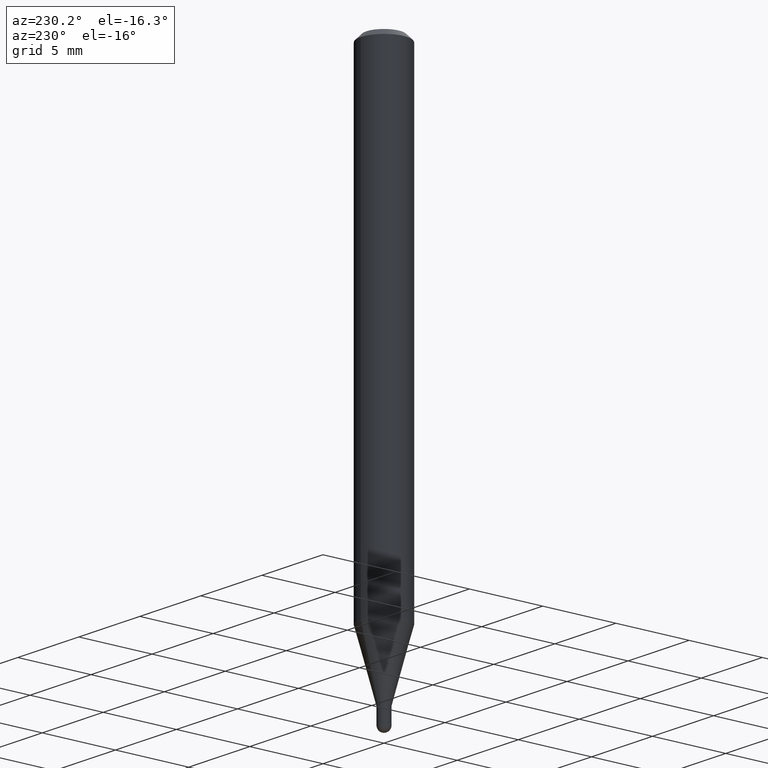
[diagram: clean part render]
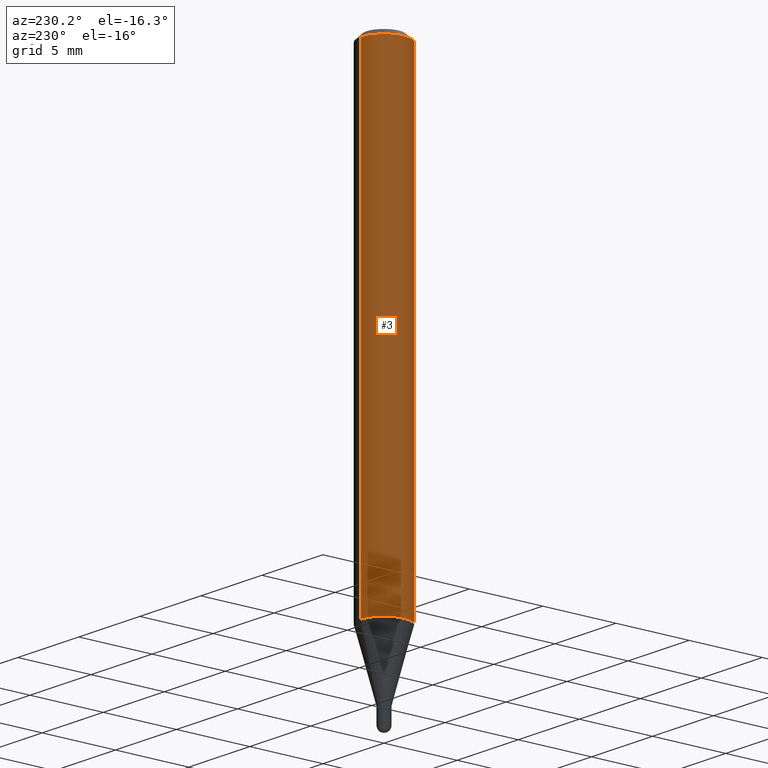
[diagram: same view with one face highlighted and labeled with its STEP entity id]
A machine part, auxiliary view. The second image highlights one B-rep face of the part: STEP entity #3.
In plain terms, the highlighted cylindrical surface (edge-blend (fillet) strip) has radius 1.5875 mm, axis along (-0, 0, 1).
Its self-contained STEP definition (entity closure, byte-faithful):
#3 = ADVANCED_FACE ( 'NONE', ( #158 ), #403, .T. ) ;
#14 = CARTESIAN_POINT ( 'NONE',  ( -4.364351673553606573E-16, -0.06250000000000442701, -1.267593612044263018 ) ) ;
#22 = EDGE_CURVE ( 'NONE', #152, #175, #123, .T. ) ;
#41 = CARTESIAN_POINT ( 'NONE',  ( 4.440892098500625669E-16, 0.06250000000000000000, -2.182168627511628321E-16 ) ) ;
#50 = DIRECTION ( 'NONE',  ( -2.445476860910062306E-29, 3.491469804018605313E-15, 1.000000000000000000 ) ) ;
#52 = CARTESIAN_POINT ( 'NONE',  ( 4.440892098500937762E-16, 0.06249999999999993755, -0.01500000000000022669 ) ) ;
#79 = EDGE_CURVE ( 'NONE', #307, #152, #438, .T. ) ;
#95 = DIRECTION ( 'NONE',  ( -2.445476860910062306E-29, 3.491469804018605313E-15, 1.000000000000000000 ) ) ;
#111 = CARTESIAN_POINT ( 'NONE',  ( -4.364351673553912750E-16, -0.06250000000000005551, -0.01499999999999979128 ) ) ;
#117 = EDGE_LOOP ( 'NONE', ( #291, #259, #193, #261 ) ) ;
#123 = CIRCLE ( 'NONE', #212, 0.06250000000000000000 ) ;
#124 = CARTESIAN_POINT ( 'NONE',  ( 4.440892098500932831E-16, 0.06249999999999554523, -1.267593612044263462 ) ) ;
#144 = VECTOR ( 'NONE', #362, 39.37007874015748143 ) ;
#152 = VERTEX_POINT ( 'NONE', #52 ) ;
#153 = AXIS2_PLACEMENT_3D ( 'NONE', #369, #155, #341 ) ;
#155 = DIRECTION ( 'NONE',  ( -2.445476860910062306E-29, 3.491469804018605313E-15, 1.000000000000000000 ) ) ;
#158 = FACE_OUTER_BOUND ( 'NONE', #117, .T. ) ;
#162 = AXIS2_PLACEMENT_3D ( 'NONE', #371, #50, #317 ) ;
#175 = VERTEX_POINT ( 'NONE', #111 ) ;
#191 = CARTESIAN_POINT ( 'NONE',  ( -4.364351673553916201E-16, -0.06250000000000000000, 2.182168627511628321E-16 ) ) ;
#193 = ORIENTED_EDGE ( 'NONE', *, *, #215, .T. ) ;
#205 = CARTESIAN_POINT ( 'NONE',  ( 3.668215291365095649E-31, -5.237204706027911593E-17, -0.01500000000000000812 ) ) ;
#207 = DIRECTION ( 'NONE',  ( -6.982962677686265922E-15, -1.000000000000000000, 3.483106191921935554E-15 ) ) ;
#212 = AXIS2_PLACEMENT_3D ( 'NONE', #205, #95, #207 ) ;
#215 = EDGE_CURVE ( 'NONE', #463, #175, #509, .T. ) ;
#229 = DIRECTION ( 'NONE',  ( -2.445476860910062026E-29, 3.491469804018605313E-15, 1.000000000000000000 ) ) ;
#235 = VECTOR ( 'NONE', #229, 39.37007874015748143 ) ;
#259 = ORIENTED_EDGE ( 'NONE', *, *, #423, .T. ) ;
#261 = ORIENTED_EDGE ( 'NONE', *, *, #22, .F. ) ;
#291 = ORIENTED_EDGE ( 'NONE', *, *, #79, .F. ) ;
#307 = VERTEX_POINT ( 'NONE', #124 ) ;
#317 = DIRECTION ( 'NONE',  ( -6.982962677686265922E-15, -1.000000000000000000, 3.491469804018605313E-15 ) ) ;
#341 = DIRECTION ( 'NONE',  ( -6.982962677686265922E-15, -1.000000000000000000, 4.370956789862821150E-15 ) ) ;
#362 = DIRECTION ( 'NONE',  ( -2.445476860910062026E-29, 3.491469804018605313E-15, 1.000000000000000000 ) ) ;
#369 = CARTESIAN_POINT ( 'NONE',  ( 3.099870847291652545E-29, -4.425764820219419566E-15, -1.267593612044263240 ) ) ;
#371 = CARTESIAN_POINT ( 'NONE',  ( 0.000000000000000000, 0.000000000000000000, 0.000000000000000000 ) ) ;
#382 = CIRCLE ( 'NONE', #153, 0.06250000000000000000 ) ;
#403 = CYLINDRICAL_SURFACE ( 'NONE', #162, 0.06250000000000000000 ) ;
#423 = EDGE_CURVE ( 'NONE', #307, #463, #382, .T. ) ;
#438 = LINE ( 'NONE', #41, #144 ) ;
#463 = VERTEX_POINT ( 'NONE', #14 ) ;
#509 = LINE ( 'NONE', #191, #235 ) ;